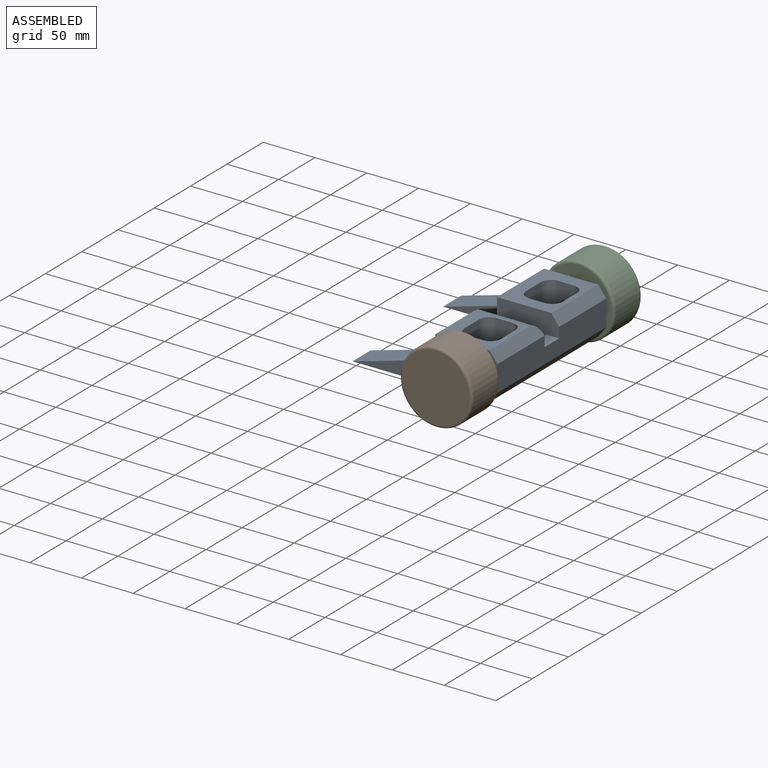
[diagram: assembled view]
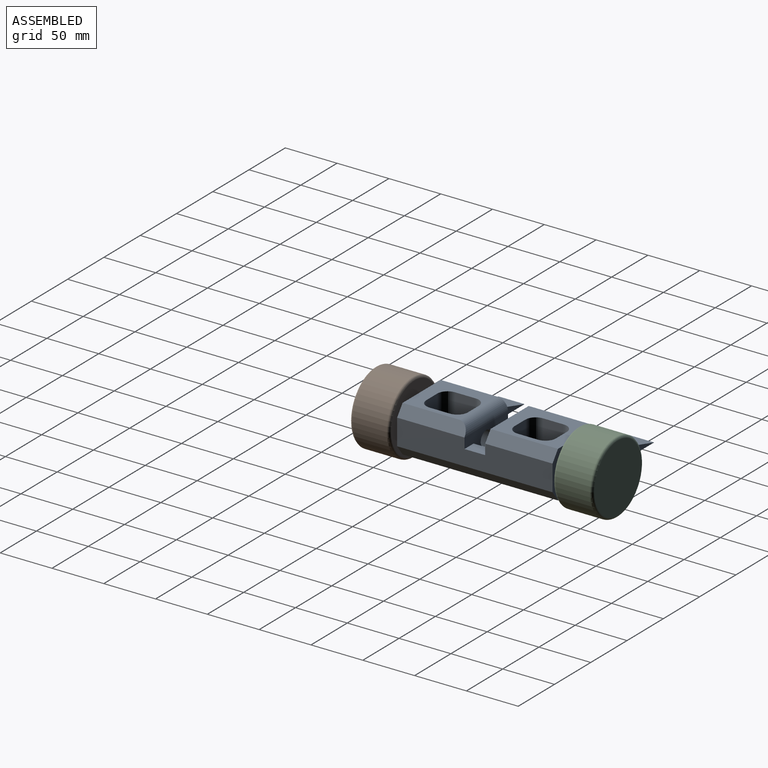
[diagram: assembled view, second angle]
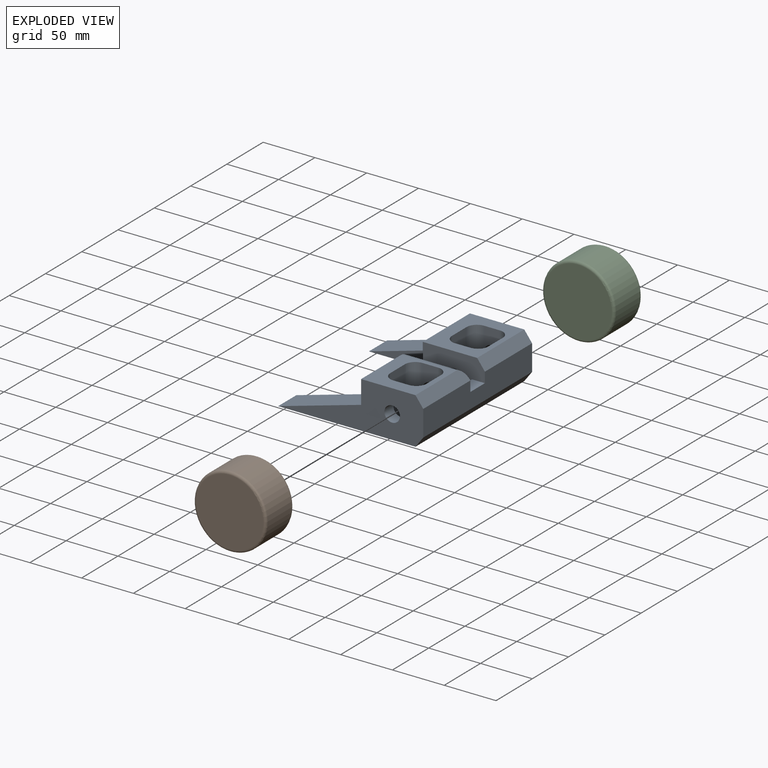
[diagram: exploded view]
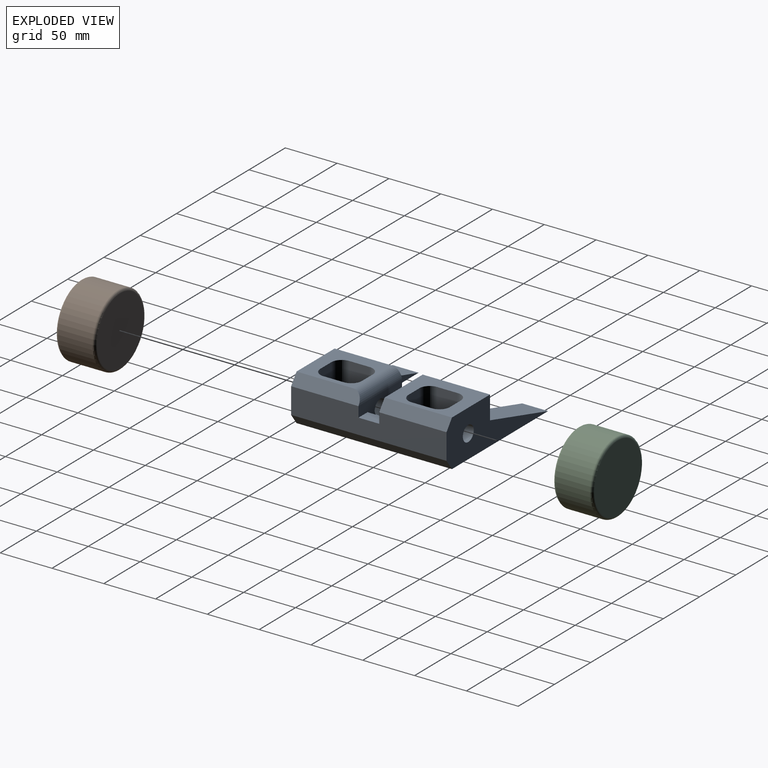
[diagram: exploded view, second angle]
ASSEMBLY  parts=3 mates=2
PART A: 45 faces, bbox 140x150x45 mm
  f0: plane 22.5x15mm, normal (0,1,0), area 249.1mm2, adj f7,f8,f41,f42
  f1: plane 22.5x15mm, normal (0,-1,0), area 249.1mm2, adj f12,f15,f40,f43
  f2: plane 22.5x15mm, normal (0,-1,0), area 249.1mm2, adj f8,f9,f38,f39
  f3: plane 22.5x15mm, normal (0,1,0), area 249.1mm2, adj f6,f8,f36,f37
  f4: plane 65x52.5mm, normal (0,0,1), area 2098.3mm2, adj f5,f13,f17,f25,f30,f31,f32,f33
  f5: plane 65x10mm, normal (0.8,0,0.6), area 812.5mm2, adj f4,f11,f17,f25
  f6: cylinder r=7.5mm len=15mm, axis (0,1,0), area 589mm2, adj f3,f25,f31
  f7: cylinder r=7.5mm len=15mm, axis (0,1,0), area 589mm2, adj f0,f16,f29
  f8: plane 150x132.5mm, normal (0,0,-1), area 8546.7mm2, adj f0,f2,f3,f10,f13,f14,f16,f17
  f9: cylinder r=7.5mm len=15mm, axis (0,1,0), area 589mm2, adj f2,f17,f33
  f10: plane 80x25mm, normal (-0.27,0,0.96), area 2077.6mm2, adj f8,f13,f17,f18
  f11: plane 150x25mm, normal (1,0,0), area 3550mm2, adj f5,f16,f17,f20,f21,f24,f25,f35
  f12: plane 55x52.5mm, normal (0,0,1), area 1573.3mm2, adj f1,f13,f16,f21,f26,f27,f29,f40
  f13: plane 150x45mm, normal (-1,0,0), area 5203.5mm2, adj f4,f8,f10,f12,f14,f16,f17,f18
  f14: plane 80x25mm, normal (-0.27,0,0.96), area 2077.6mm2, adj f8,f13,f16,f19
  f15: cylinder r=7.5mm len=15mm, axis (0,1,0), area 589mm2, adj f1,f24,f28
  f16: plane 140x45mm, normal (0,-1,0), area 3348.3mm2, adj f7,f8,f11,f12,f13,f14,f20,f21
  f17: plane 140x45mm, normal (0,1,0), area 3348.3mm2, adj f4,f5,f8,f9,f10,f11,f13,f20
  f18: plane 80x22.5mm, normal (0,-1,0), area 900mm2, adj f8,f10,f13
  f19: plane 80x22.5mm, normal (0,1,0), area 900mm2, adj f8,f13,f14
  f20: plane 150x10mm, normal (0.8,0,-0.6), area 1875mm2, adj f8,f11,f16,f17
  f21: plane 65x10mm, normal (0.8,0,0.6), area 785.7mm2, adj f11,f12,f16,f44
  f22: plane 25x20mm, normal (-1,0,0), area 500mm2, adj f8,f24,f25,f35
  f23: plane 25x20mm, normal (1,0,0), area 500mm2, adj f8,f24,f25,f34
  f24: plane 60x35mm, normal (0,1,0), area 1298.3mm2, adj f8,f11,f13,f15,f22,f23,f34,f35
  f25: plane 60x45mm, normal (0,-1,0), area 1860.8mm2, adj f4,f5,f6,f8,f11,f13,f22,f23
  f26: plane 45x20mm, normal (1,0,0), area 900mm2, adj f8,f12,f40,f41
  f27: plane 45x20mm, normal (-1,0,0), area 900mm2, adj f8,f12,f42,f43
  f28: plane 22.5x15mm, normal (0,-1,0), area 249.1mm2, adj f8,f15,f40,f43
  f29: plane 22.5x15mm, normal (0,1,0), area 249.1mm2, adj f7,f12,f41,f42
  f30: plane 45x20mm, normal (1,0,0), area 900mm2, adj f4,f8,f36,f39
  f31: plane 22.5x15mm, normal (0,1,0), area 249.1mm2, adj f4,f6,f36,f37
  f32: plane 45x20mm, normal (-1,0,0), area 900mm2, adj f4,f8,f37,f38
  f33: plane 22.5x15mm, normal (0,-1,0), area 249.1mm2, adj f4,f9,f38,f39
  f34: plane 20x12.5mm, normal (0,0,1), area 250mm2, adj f13,f23,f24,f25
  f35: plane 20x12.5mm, normal (0,0,1), area 250mm2, adj f11,f22,f24,f25
  f36: cylinder r=10mm len=45mm, axis (0,0,-1), area 706.9mm2, adj f3,f4,f8,f30,f31
  f37: cylinder r=10mm len=45mm, axis (0,0,1), area 706.9mm2, adj f3,f4,f8,f31,f32
  f38: cylinder r=10mm len=45mm, axis (0,0,-1), area 706.9mm2, adj f2,f4,f8,f32,f33
  f39: cylinder r=10mm len=45mm, axis (0,0,1), area 706.9mm2, adj f2,f4,f8,f30,f33
  f40: cylinder r=10mm len=45mm, axis (0,0,-1), area 706.9mm2, adj f1,f8,f12,f26,f28
  f41: cylinder r=10mm len=45mm, axis (0,0,1), area 706.9mm2, adj f0,f8,f12,f26,f29
  f42: cylinder r=10mm len=45mm, axis (0,0,-1), area 706.9mm2, adj f0,f8,f12,f27,f29
  f43: cylinder r=10mm len=45mm, axis (0,0,1), area 706.9mm2, adj f1,f8,f12,f27,f28
  f44: cylinder r=10mm len=60mm, axis (-1,0,0), area 867.5mm2, adj f12,f13,f21,f24
PART B: 5 faces, bbox 75.6x75.6x38.1 mm
  f0: cylinder r=34.92mm len=69.85mm, axis (0,0,-1), area 7263.5mm2, adj f3,f4
  f1: plane 64.85x64.85mm, normal (0,0,1), area 3303mm2, adj f4
  f2: plane 64.85x64.85mm, normal (0,0,-1), area 3303mm2, adj f3
  f3: torus R=32.43mm, axis (0,0,1), area 839.3mm2, adj f0,f2
  f4: torus R=32.43mm, axis (0,0,1), area 839.3mm2, adj f0,f1
PART C: same geometry as B
PLACE A t=(53.45,0.5,-19.66)mm fixed
PLACE B rot(axis=(1,0,0),90deg) t=(23.45,-78.5,2.84)mm
PLACE C rot(axis=(1,0,0),90deg) t=(23.45,117.6,2.84)mm
MATE revolute B.f0 <-> A.f6  axis (0,1,0) through (23.45,-78.5,2.84)mm
MATE revolute A.f6 <-> C.f0  axis (0,1,0) through (23.45,75.5,2.84)mm
